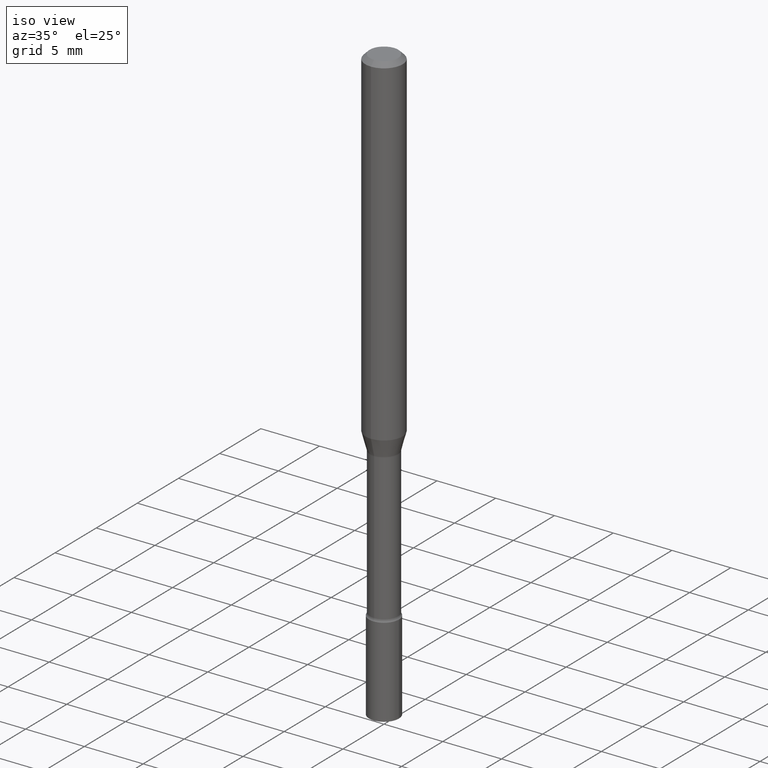
[diagram: clean part render]
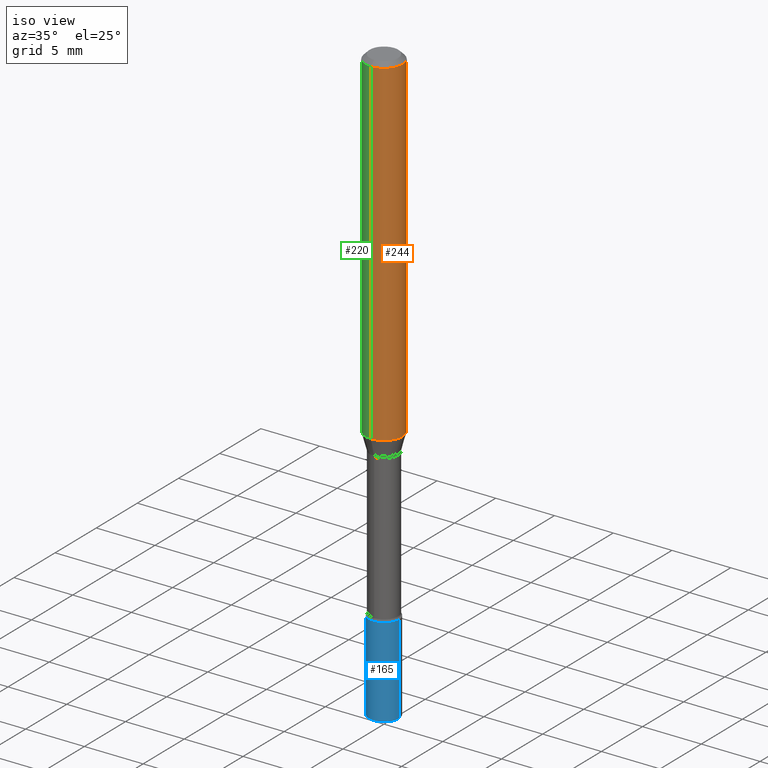
[diagram: same view with three faces highlighted in distinct colors, each labeled with its STEP entity id]
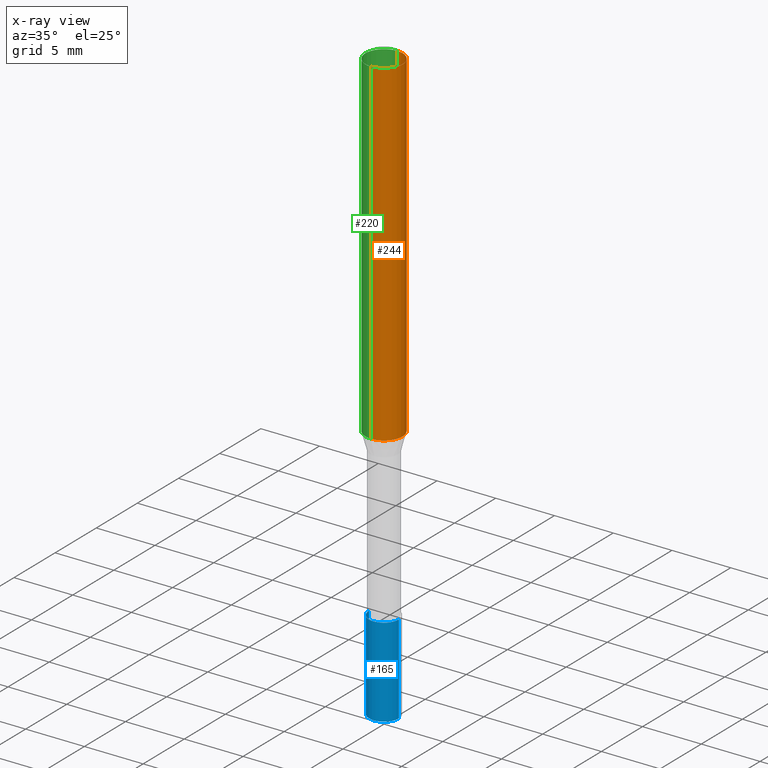
[diagram: x-ray of the same camera — body ghosted, the three highlighted faces saturated]
A machine part, iso view with three faces highlighted in distinct colors.
The next image is the same camera in x-ray (body ghosted, the three faces saturated) — at least one of them is partly hidden behind the body in this view.
Their STEP definitions:

[orange] entity #244 — the highlighted cylindrical surface (edge-blend (fillet) strip) has radius 1.5875 mm, axis along (-0, 0, 1).
#8 = ORIENTED_EDGE ( 'NONE', *, *, #56, .F. ) ;
#9 = EDGE_CURVE ( 'NONE', #92, #169, #440, .T. ) ;
#42 = AXIS2_PLACEMENT_3D ( 'NONE', #441, #46, #251 ) ;
#46 = DIRECTION ( 'NONE',  ( -2.445393163361418932E-29, 3.491589663672031221E-15, 1.000000000000000000 ) ) ;
#56 = EDGE_CURVE ( 'NONE', #169, #64, #469, .T. ) ;
#64 = VERTEX_POINT ( 'NONE', #260 ) ;
#68 = CYLINDRICAL_SURFACE ( 'NONE', #42, 0.06250000000000000000 ) ;
#80 = ORIENTED_EDGE ( 'NONE', *, *, #9, .F. ) ;
#92 = VERTEX_POINT ( 'NONE', #313 ) ;
#105 = CARTESIAN_POINT ( 'NONE',  ( 2.793013657316433629E-29, -3.987930351034339464E-15, -1.142153212482682312 ) ) ;
#134 = DIRECTION ( 'NONE',  ( -2.445393163361418932E-29, 3.491589663672031221E-15, 1.000000000000000000 ) ) ;
#136 = CARTESIAN_POINT ( 'NONE',  ( -4.364351673553912750E-16, -0.06250000000000005551, -0.01499999999999981209 ) ) ;
#169 = VERTEX_POINT ( 'NONE', #136 ) ;
#188 = CIRCLE ( 'NONE', #489, 0.06250000000000000000 ) ;
#204 = LINE ( 'NONE', #446, #296 ) ;
#235 = CARTESIAN_POINT ( 'NONE',  ( 4.440892098500904235E-16, 0.06249999999999601014, -1.142153212482682756 ) ) ;
#244 = ADVANCED_FACE ( 'NONE', ( #329 ), #68, .T. ) ;
#251 = DIRECTION ( 'NONE',  ( -6.982962677686265922E-15, -1.000000000000000000, 3.491589663672031221E-15 ) ) ;
#256 = ORIENTED_EDGE ( 'NONE', *, *, #432, .T. ) ;
#260 = CARTESIAN_POINT ( 'NONE',  ( 4.440892098500906207E-16, 0.06249999999999993755, -0.01500000000000024751 ) ) ;
#296 = VECTOR ( 'NONE', #367, 39.37007874015748143 ) ;
#301 = DIRECTION ( 'NONE',  ( -6.982962677686265922E-15, -1.000000000000000000, 3.483106191921935554E-15 ) ) ;
#313 = CARTESIAN_POINT ( 'NONE',  ( -4.364351673553637635E-16, -0.06250000000000399680, -1.142153212482682090 ) ) ;
#317 = AXIS2_PLACEMENT_3D ( 'NONE', #499, #134, #301 ) ;
#321 = DIRECTION ( 'NONE',  ( -2.445393163361418932E-29, 3.491589663672031221E-15, 1.000000000000000000 ) ) ;
#329 = FACE_OUTER_BOUND ( 'NONE', #438, .T. ) ;
#355 = DIRECTION ( 'NONE',  ( -6.982962677686265922E-15, -1.000000000000000000, 4.370956789862821150E-15 ) ) ;
#367 = DIRECTION ( 'NONE',  ( -2.445393163361418932E-29, 3.491589663672031616E-15, 1.000000000000000000 ) ) ;
#432 = EDGE_CURVE ( 'NONE', #92, #512, #188, .T. ) ;
#438 = EDGE_LOOP ( 'NONE', ( #256, #445, #8, #80 ) ) ;
#440 = LINE ( 'NONE', #444, #495 ) ;
#441 = CARTESIAN_POINT ( 'NONE',  ( 0.000000000000000000, 0.000000000000000000, 0.000000000000000000 ) ) ;
#444 = CARTESIAN_POINT ( 'NONE',  ( -4.364351673553916201E-16, -0.06250000000000000000, 2.182243539795019513E-16 ) ) ;
#445 = ORIENTED_EDGE ( 'NONE', *, *, #510, .T. ) ;
#446 = CARTESIAN_POINT ( 'NONE',  ( 4.440892098500625669E-16, 0.06250000000000000000, -2.182243539795019513E-16 ) ) ;
#469 = CIRCLE ( 'NONE', #317, 0.06250000000000000000 ) ;
#487 = DIRECTION ( 'NONE',  ( -2.445393163361418932E-29, 3.491589663672031616E-15, 1.000000000000000000 ) ) ;
#489 = AXIS2_PLACEMENT_3D ( 'NONE', #105, #321, #355 ) ;
#495 = VECTOR ( 'NONE', #487, 39.37007874015748143 ) ;
#499 = CARTESIAN_POINT ( 'NONE',  ( 3.668089745042136001E-31, -5.237384495508057654E-17, -0.01500000000000003067 ) ) ;
#510 = EDGE_CURVE ( 'NONE', #512, #64, #204, .T. ) ;
#512 = VERTEX_POINT ( 'NONE', #235 ) ;

[blue] entity #165 — the highlighted cylindrical surface (edge-blend (fillet) strip) has radius 1.27 mm, axis along (-0, 0, 1).
#11 = CIRCLE ( 'NONE', #262, 0.05000000000000000278 ) ;
#14 = VERTEX_POINT ( 'NONE', #202 ) ;
#34 = CARTESIAN_POINT ( 'NONE',  ( -0.05000000000000000278, -6.103969108979769176E-15, -2.000000000000000000 ) ) ;
#69 = CARTESIAN_POINT ( 'NONE',  ( 4.890937612370273194E-29, -6.982962677686291165E-15, -2.000000000000000000 ) ) ;
#73 = CARTESIAN_POINT ( 'NONE',  ( 0.05000000000000000278, -6.284666409917660550E-15, -1.699999999999999956 ) ) ;
#94 = ORIENTED_EDGE ( 'NONE', *, *, #149, .T. ) ;
#112 = DIRECTION ( 'NONE',  ( -2.445468806185136597E-29, 3.491481338843145583E-15, 1.000000000000000000 ) ) ;
#133 = DIRECTION ( 'NONE',  ( -2.445468806185136877E-29, 3.491481338843145188E-15, 1.000000000000000000 ) ) ;
#138 = CARTESIAN_POINT ( 'NONE',  ( 0.05000000000000000278, -3.491481338843133848E-16, 2.438088387897968247E-30 ) ) ;
#145 = EDGE_CURVE ( 'NONE', #394, #455, #11, .T. ) ;
#149 = EDGE_CURVE ( 'NONE', #459, #14, #515, .T. ) ;
#152 = AXIS2_PLACEMENT_3D ( 'NONE', #460, #498, #212 ) ;
#165 = ADVANCED_FACE ( 'NONE', ( #241 ), #390, .T. ) ;
#202 = CARTESIAN_POINT ( 'NONE',  ( 0.05000000000000000278, -7.332110811570605290E-15, -2.000000000000000000 ) ) ;
#212 = DIRECTION ( 'NONE',  ( 1.000000000000000000, -6.982962677686267499E-15, 4.876176775795936353E-29 ) ) ;
#217 = ORIENTED_EDGE ( 'NONE', *, *, #349, .F. ) ;
#241 = FACE_OUTER_BOUND ( 'NONE', #245, .T. ) ;
#245 = EDGE_LOOP ( 'NONE', ( #217, #94, #433, #279 ) ) ;
#252 = VECTOR ( 'NONE', #133, 39.37007874015748143 ) ;
#262 = AXIS2_PLACEMENT_3D ( 'NONE', #383, #369, #481 ) ;
#279 = ORIENTED_EDGE ( 'NONE', *, *, #145, .F. ) ;
#284 = DIRECTION ( 'NONE',  ( 1.000000000000000000, -6.982962677686274599E-15, 0.000000000000000000 ) ) ;
#291 = LINE ( 'NONE', #299, #252 ) ;
#299 = CARTESIAN_POINT ( 'NONE',  ( -0.05000000000000000278, 3.552713678800501127E-16, -2.459467545127453311E-30 ) ) ;
#307 = EDGE_CURVE ( 'NONE', #14, #455, #316, .T. ) ;
#314 = DIRECTION ( 'NONE',  ( -2.445468806185136877E-29, 3.491481338843145188E-15, 1.000000000000000000 ) ) ;
#316 = LINE ( 'NONE', #138, #478 ) ;
#349 = EDGE_CURVE ( 'NONE', #459, #394, #291, .T. ) ;
#369 = DIRECTION ( 'NONE',  ( -2.445468806185136597E-29, 3.491481338843145583E-15, 1.000000000000000000 ) ) ;
#383 = CARTESIAN_POINT ( 'NONE',  ( 4.157296970514731878E-29, -5.935518276033347214E-15, -1.699999999999999956 ) ) ;
#390 = CYLINDRICAL_SURFACE ( 'NONE', #152, 0.05000000000000000278 ) ;
#394 = VERTEX_POINT ( 'NONE', #464 ) ;
#400 = AXIS2_PLACEMENT_3D ( 'NONE', #69, #112, #284 ) ;
#433 = ORIENTED_EDGE ( 'NONE', *, *, #307, .T. ) ;
#455 = VERTEX_POINT ( 'NONE', #73 ) ;
#459 = VERTEX_POINT ( 'NONE', #34 ) ;
#460 = CARTESIAN_POINT ( 'NONE',  ( 0.000000000000000000, 0.000000000000000000, 0.000000000000000000 ) ) ;
#464 = CARTESIAN_POINT ( 'NONE',  ( -0.05000000000000000278, -6.103969108979769176E-15, -1.699999999999999956 ) ) ;
#478 = VECTOR ( 'NONE', #314, 39.37007874015748143 ) ;
#481 = DIRECTION ( 'NONE',  ( 1.000000000000000000, -6.982962677686274599E-15, 0.000000000000000000 ) ) ;
#498 = DIRECTION ( 'NONE',  ( -2.445468806185136597E-29, 3.491481338843145583E-15, 1.000000000000000000 ) ) ;
#515 = CIRCLE ( 'NONE', #400, 0.05000000000000000278 ) ;

[green] entity #220 — the highlighted cylindrical surface (edge-blend (fillet) strip) has radius 1.5875 mm, axis along (-0, 0, 1).
#4 = EDGE_CURVE ( 'NONE', #512, #92, #429, .T. ) ;
#9 = EDGE_CURVE ( 'NONE', #92, #169, #440, .T. ) ;
#32 = DIRECTION ( 'NONE',  ( -6.982962677686265922E-15, -1.000000000000000000, 3.491589663672031221E-15 ) ) ;
#43 = DIRECTION ( 'NONE',  ( -6.982962677686265922E-15, -1.000000000000000000, 4.370956789862821150E-15 ) ) ;
#49 = AXIS2_PLACEMENT_3D ( 'NONE', #238, #405, #372 ) ;
#53 = EDGE_CURVE ( 'NONE', #64, #169, #172, .T. ) ;
#64 = VERTEX_POINT ( 'NONE', #260 ) ;
#66 = AXIS2_PLACEMENT_3D ( 'NONE', #111, #83, #32 ) ;
#83 = DIRECTION ( 'NONE',  ( -2.445393163361418932E-29, 3.491589663672031221E-15, 1.000000000000000000 ) ) ;
#92 = VERTEX_POINT ( 'NONE', #313 ) ;
#104 = ORIENTED_EDGE ( 'NONE', *, *, #9, .T. ) ;
#111 = CARTESIAN_POINT ( 'NONE',  ( 0.000000000000000000, 0.000000000000000000, 0.000000000000000000 ) ) ;
#123 = DIRECTION ( 'NONE',  ( -2.445393163361418932E-29, 3.491589663672031221E-15, 1.000000000000000000 ) ) ;
#136 = CARTESIAN_POINT ( 'NONE',  ( -4.364351673553912750E-16, -0.06250000000000005551, -0.01499999999999981209 ) ) ;
#162 = CARTESIAN_POINT ( 'NONE',  ( 2.793013657316433629E-29, -3.987930351034339464E-15, -1.142153212482682312 ) ) ;
#169 = VERTEX_POINT ( 'NONE', #136 ) ;
#172 = CIRCLE ( 'NONE', #49, 0.06250000000000000000 ) ;
#179 = ORIENTED_EDGE ( 'NONE', *, *, #510, .F. ) ;
#193 = AXIS2_PLACEMENT_3D ( 'NONE', #162, #123, #43 ) ;
#204 = LINE ( 'NONE', #446, #296 ) ;
#220 = ADVANCED_FACE ( 'NONE', ( #289 ), #333, .T. ) ;
#235 = CARTESIAN_POINT ( 'NONE',  ( 4.440892098500904235E-16, 0.06249999999999601014, -1.142153212482682756 ) ) ;
#238 = CARTESIAN_POINT ( 'NONE',  ( 3.668089745042136001E-31, -5.237384495508057654E-17, -0.01500000000000003067 ) ) ;
#260 = CARTESIAN_POINT ( 'NONE',  ( 4.440892098500906207E-16, 0.06249999999999993755, -0.01500000000000024751 ) ) ;
#289 = FACE_OUTER_BOUND ( 'NONE', #391, .T. ) ;
#296 = VECTOR ( 'NONE', #367, 39.37007874015748143 ) ;
#313 = CARTESIAN_POINT ( 'NONE',  ( -4.364351673553637635E-16, -0.06250000000000399680, -1.142153212482682090 ) ) ;
#324 = ORIENTED_EDGE ( 'NONE', *, *, #53, .F. ) ;
#333 = CYLINDRICAL_SURFACE ( 'NONE', #66, 0.06250000000000000000 ) ;
#367 = DIRECTION ( 'NONE',  ( -2.445393163361418932E-29, 3.491589663672031616E-15, 1.000000000000000000 ) ) ;
#372 = DIRECTION ( 'NONE',  ( -6.982962677686265922E-15, -1.000000000000000000, 3.483106191921935554E-15 ) ) ;
#391 = EDGE_LOOP ( 'NONE', ( #179, #435, #104, #324 ) ) ;
#405 = DIRECTION ( 'NONE',  ( -2.445393163361418932E-29, 3.491589663672031221E-15, 1.000000000000000000 ) ) ;
#429 = CIRCLE ( 'NONE', #193, 0.06250000000000000000 ) ;
#435 = ORIENTED_EDGE ( 'NONE', *, *, #4, .T. ) ;
#440 = LINE ( 'NONE', #444, #495 ) ;
#444 = CARTESIAN_POINT ( 'NONE',  ( -4.364351673553916201E-16, -0.06250000000000000000, 2.182243539795019513E-16 ) ) ;
#446 = CARTESIAN_POINT ( 'NONE',  ( 4.440892098500625669E-16, 0.06250000000000000000, -2.182243539795019513E-16 ) ) ;
#487 = DIRECTION ( 'NONE',  ( -2.445393163361418932E-29, 3.491589663672031616E-15, 1.000000000000000000 ) ) ;
#495 = VECTOR ( 'NONE', #487, 39.37007874015748143 ) ;
#510 = EDGE_CURVE ( 'NONE', #512, #64, #204, .T. ) ;
#512 = VERTEX_POINT ( 'NONE', #235 ) ;